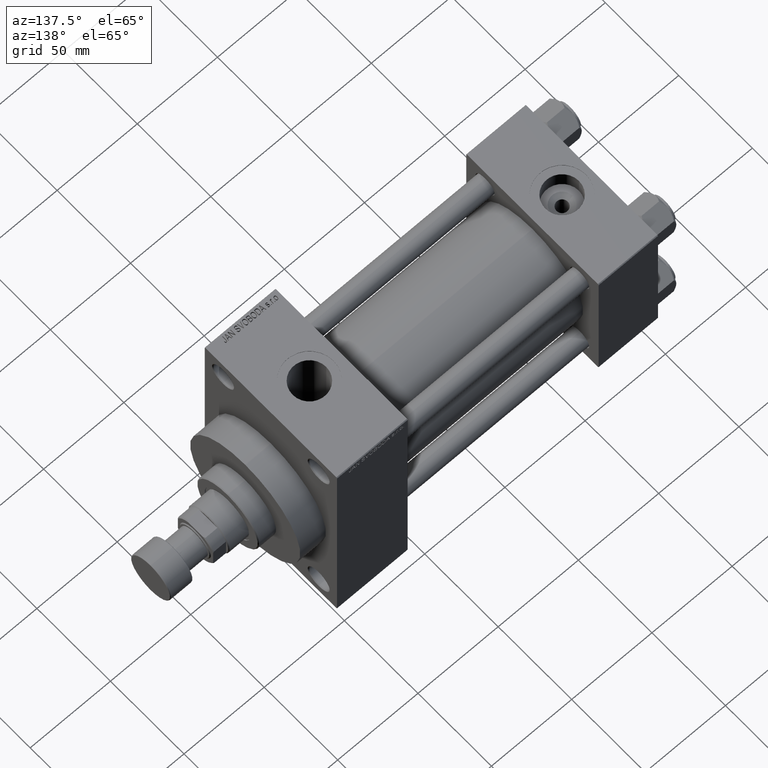
[diagram: clean part render]
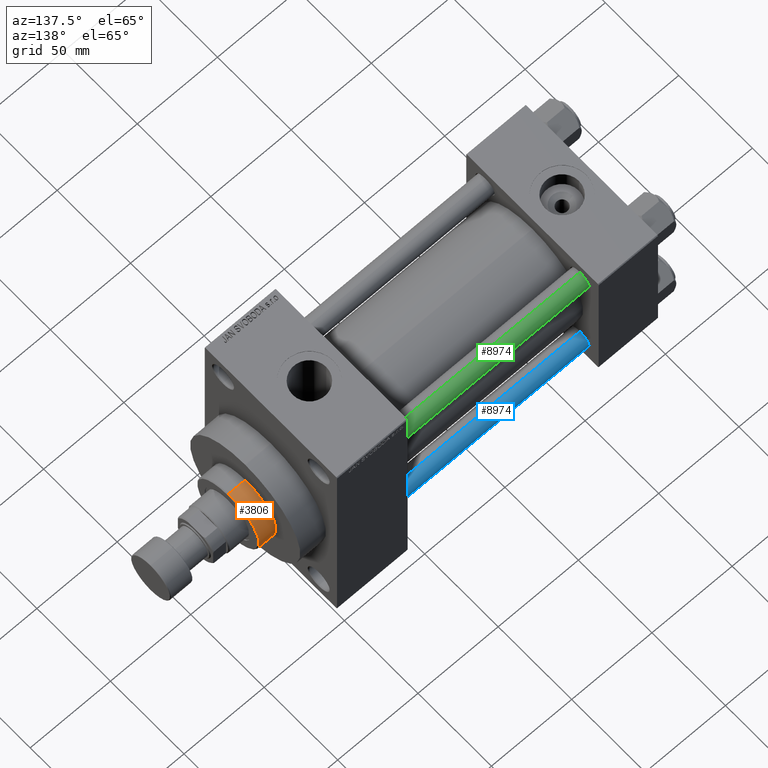
[diagram: same view with three faces highlighted in distinct colors, each labeled with its STEP entity id]
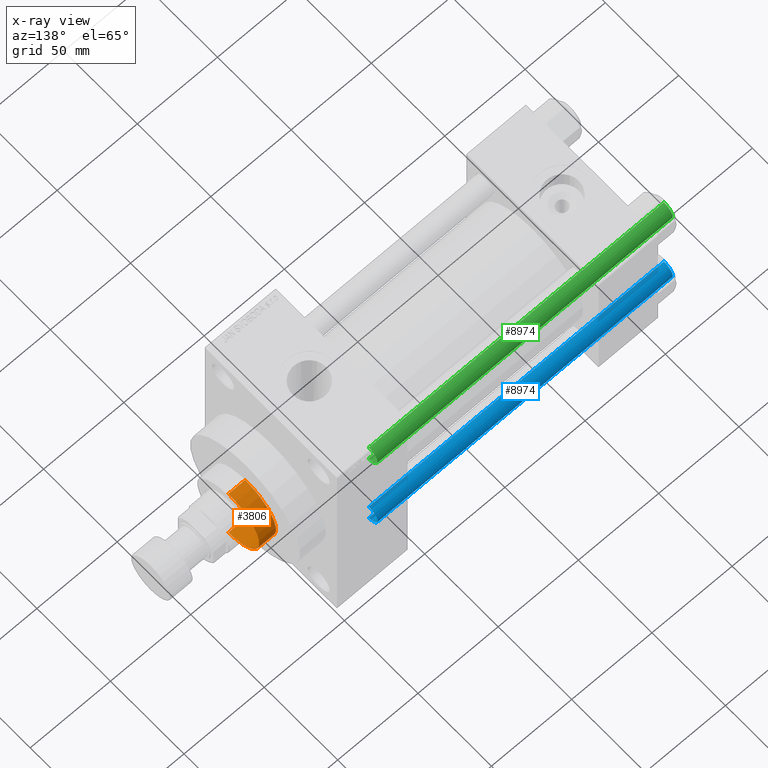
[diagram: x-ray of the same camera — body ghosted, the three highlighted faces saturated]
A machine part, auxiliary view with three faces highlighted in distinct colors.
The next image is the same camera in x-ray (body ghosted, the three faces saturated) — at least one of them is partly hidden behind the body in this view.
Their STEP definitions:

[orange] entity #3806 — the highlighted cylindrical surface (partial cylindrical patch) has radius 21 mm, axis along (-1, -0, 0).
#1161 = CYLINDRICAL_SURFACE ( 'NONE', #34441, 21.00000000000000000 ) ;
#3311 = EDGE_CURVE ( 'NONE', #11696, #38590, #9455, .T. ) ;
#3806 = ADVANCED_FACE ( 'NONE', ( #12236 ), #1161, .T. ) ;
#4528 = DIRECTION ( 'NONE',  ( -1.000000000000000000, 0.000000000000000000, 0.000000000000000000 ) ) ;
#5871 = AXIS2_PLACEMENT_3D ( 'NONE', #18475, #11216, #33907 ) ;
#6769 = VECTOR ( 'NONE', #19030, 1000.000000000000000 ) ;
#7719 = VERTEX_POINT ( 'NONE', #33777 ) ;
#9455 = LINE ( 'NONE', #24179, #42066 ) ;
#9891 = DIRECTION ( 'NONE',  ( 0.000000000000000000, 0.000000000000000000, 1.000000000000000000 ) ) ;
#9899 = CIRCLE ( 'NONE', #25333, 21.00000000000000000 ) ;
#11216 = DIRECTION ( 'NONE',  ( 0.000000000000000000, 0.000000000000000000, -1.000000000000000000 ) ) ;
#11696 = VERTEX_POINT ( 'NONE', #28722 ) ;
#12236 = FACE_OUTER_BOUND ( 'NONE', #17762, .T. ) ;
#13024 = CARTESIAN_POINT ( 'NONE',  ( 0.000000000000000000, 0.000000000000000000, 43.25999999999999801 ) ) ;
#17762 = EDGE_LOOP ( 'NONE', ( #33399, #25304, #35967, #30975 ) ) ;
#18475 = CARTESIAN_POINT ( 'NONE',  ( 0.000000000000000000, 0.000000000000000000, 53.76000000000001933 ) ) ;
#19030 = DIRECTION ( 'NONE',  ( -0.000000000000000000, -0.000000000000000000, -1.000000000000000000 ) ) ;
#23220 = DIRECTION ( 'NONE',  ( -0.000000000000000000, -0.000000000000000000, -1.000000000000000000 ) ) ;
#24179 = CARTESIAN_POINT ( 'NONE',  ( -21.00000000000000000, 0.000000000000000000, 54.26000000000000512 ) ) ;
#24616 = DIRECTION ( 'NONE',  ( 1.000000000000000000, 0.000000000000000000, 0.000000000000000000 ) ) ;
#25304 = ORIENTED_EDGE ( 'NONE', *, *, #34579, .T. ) ;
#25333 = AXIS2_PLACEMENT_3D ( 'NONE', #13024, #9891, #24616 ) ;
#26702 = EDGE_CURVE ( 'NONE', #11696, #7719, #37443, .T. ) ;
#28722 = CARTESIAN_POINT ( 'NONE',  ( -21.00000000000000000, 0.000000000000000000, 53.76000000000001933 ) ) ;
#30975 = ORIENTED_EDGE ( 'NONE', *, *, #3311, .F. ) ;
#33041 = CARTESIAN_POINT ( 'NONE',  ( 21.00000000000000000, 2.571758278209441661E-15, 54.26000000000000512 ) ) ;
#33399 = ORIENTED_EDGE ( 'NONE', *, *, #26702, .T. ) ;
#33777 = CARTESIAN_POINT ( 'NONE',  ( 21.00000000000000000, 2.571758278209441661E-15, 53.76000000000001933 ) ) ;
#33907 = DIRECTION ( 'NONE',  ( 1.000000000000000000, 0.000000000000000000, 0.000000000000000000 ) ) ;
#34038 = CARTESIAN_POINT ( 'NONE',  ( 21.00000000000000000, 2.571758278209441661E-15, 43.25999999999999801 ) ) ;
#34441 = AXIS2_PLACEMENT_3D ( 'NONE', #34450, #45749, #4528 ) ;
#34450 = CARTESIAN_POINT ( 'NONE',  ( 0.000000000000000000, 0.000000000000000000, 54.26000000000000512 ) ) ;
#34579 = EDGE_CURVE ( 'NONE', #7719, #38348, #43889, .T. ) ;
#35967 = ORIENTED_EDGE ( 'NONE', *, *, #36155, .T. ) ;
#36155 = EDGE_CURVE ( 'NONE', #38348, #38590, #9899, .T. ) ;
#37443 = CIRCLE ( 'NONE', #5871, 21.00000000000000000 ) ;
#38348 = VERTEX_POINT ( 'NONE', #34038 ) ;
#38590 = VERTEX_POINT ( 'NONE', #45291 ) ;
#42066 = VECTOR ( 'NONE', #23220, 1000.000000000000000 ) ;
#43889 = LINE ( 'NONE', #33041, #6769 ) ;
#45291 = CARTESIAN_POINT ( 'NONE',  ( -21.00000000000000000, 0.000000000000000000, 43.25999999999999801 ) ) ;
#45749 = DIRECTION ( 'NONE',  ( -0.000000000000000000, -0.000000000000000000, -1.000000000000000000 ) ) ;

[blue] entity #8974 — the highlighted cylindrical surface (edge-blend (fillet) strip) has radius 6 mm, axis along (-1, -0, 0).
#311 = LINE ( 'NONE', #14996, #3968 ) ;
#2363 = AXIS2_PLACEMENT_3D ( 'NONE', #7781, #36285, #22502 ) ;
#3968 = VECTOR ( 'NONE', #44420, 1000.000000000000000 ) ;
#4687 = CYLINDRICAL_SURFACE ( 'NONE', #11472, 6.000000000000000888 ) ;
#5241 = VERTEX_POINT ( 'NONE', #37984 ) ;
#5512 = ORIENTED_EDGE ( 'NONE', *, *, #47337, .F. ) ;
#6467 = CARTESIAN_POINT ( 'NONE',  ( 6.000000000000000888, 7.347880794884120722E-16, 0.5000000000000281997 ) ) ;
#7659 = ORIENTED_EDGE ( 'NONE', *, *, #16695, .T. ) ;
#7781 = CARTESIAN_POINT ( 'NONE',  ( 0.000000000000000000, 0.000000000000000000, 0.5000000000000281997 ) ) ;
#8429 = EDGE_CURVE ( 'NONE', #10275, #16174, #12203, .T. ) ;
#8974 = ADVANCED_FACE ( 'NONE', ( #23493 ), #4687, .T. ) ;
#10154 = ORIENTED_EDGE ( 'NONE', *, *, #41130, .T. ) ;
#10275 = VERTEX_POINT ( 'NONE', #13890 ) ;
#10643 = LINE ( 'NONE', #29219, #46274 ) ;
#11472 = AXIS2_PLACEMENT_3D ( 'NONE', #34127, #44705, #19635 ) ;
#12203 = CIRCLE ( 'NONE', #40714, 6.000000000000000888 ) ;
#13890 = CARTESIAN_POINT ( 'NONE',  ( -6.000000000000000888, 0.000000000000000000, 184.5000000000000000 ) ) ;
#14996 = CARTESIAN_POINT ( 'NONE',  ( -6.000000000000000888, 0.000000000000000000, 185.0000000000000000 ) ) ;
#15318 = CARTESIAN_POINT ( 'NONE',  ( 6.000000000000000888, 7.347880794884120722E-16, 184.5000000000000000 ) ) ;
#16174 = VERTEX_POINT ( 'NONE', #15318 ) ;
#16695 = EDGE_CURVE ( 'NONE', #21299, #5241, #43944, .T. ) ;
#19635 = DIRECTION ( 'NONE',  ( -1.000000000000000000, 0.000000000000000000, 0.000000000000000000 ) ) ;
#21299 = VERTEX_POINT ( 'NONE', #6467 ) ;
#21612 = ORIENTED_EDGE ( 'NONE', *, *, #8429, .T. ) ;
#22502 = DIRECTION ( 'NONE',  ( 1.000000000000000000, 0.000000000000000000, 0.000000000000000000 ) ) ;
#23493 = FACE_OUTER_BOUND ( 'NONE', #37868, .T. ) ;
#29219 = CARTESIAN_POINT ( 'NONE',  ( 6.000000000000000888, 7.347880794884120722E-16, 185.0000000000000000 ) ) ;
#29948 = DIRECTION ( 'NONE',  ( 0.000000000000000000, 0.000000000000000000, -1.000000000000000000 ) ) ;
#34127 = CARTESIAN_POINT ( 'NONE',  ( 0.000000000000000000, 0.000000000000000000, 185.0000000000000000 ) ) ;
#36285 = DIRECTION ( 'NONE',  ( -0.000000000000000000, -0.000000000000000000, 1.000000000000000000 ) ) ;
#37868 = EDGE_LOOP ( 'NONE', ( #21612, #10154, #7659, #5512 ) ) ;
#37984 = CARTESIAN_POINT ( 'NONE',  ( -6.000000000000000888, 0.000000000000000000, 0.5000000000000281997 ) ) ;
#40714 = AXIS2_PLACEMENT_3D ( 'NONE', #40797, #29948, #44635 ) ;
#40797 = CARTESIAN_POINT ( 'NONE',  ( 0.000000000000000000, 0.000000000000000000, 184.5000000000000000 ) ) ;
#41130 = EDGE_CURVE ( 'NONE', #16174, #21299, #10643, .T. ) ;
#43944 = CIRCLE ( 'NONE', #2363, 6.000000000000000888 ) ;
#44420 = DIRECTION ( 'NONE',  ( -0.000000000000000000, -0.000000000000000000, -1.000000000000000000 ) ) ;
#44635 = DIRECTION ( 'NONE',  ( 1.000000000000000000, 0.000000000000000000, 0.000000000000000000 ) ) ;
#44705 = DIRECTION ( 'NONE',  ( -0.000000000000000000, -0.000000000000000000, -1.000000000000000000 ) ) ;
#46274 = VECTOR ( 'NONE', #47077, 1000.000000000000000 ) ;
#47077 = DIRECTION ( 'NONE',  ( -0.000000000000000000, -0.000000000000000000, -1.000000000000000000 ) ) ;
#47337 = EDGE_CURVE ( 'NONE', #10275, #5241, #311, .T. ) ;

[green] entity #8974 — the highlighted cylindrical surface (edge-blend (fillet) strip) has radius 6 mm, axis along (1, -0, -0).
#311 = LINE ( 'NONE', #14996, #3968 ) ;
#2363 = AXIS2_PLACEMENT_3D ( 'NONE', #7781, #36285, #22502 ) ;
#3968 = VECTOR ( 'NONE', #44420, 1000.000000000000000 ) ;
#4687 = CYLINDRICAL_SURFACE ( 'NONE', #11472, 6.000000000000000888 ) ;
#5241 = VERTEX_POINT ( 'NONE', #37984 ) ;
#5512 = ORIENTED_EDGE ( 'NONE', *, *, #47337, .F. ) ;
#6467 = CARTESIAN_POINT ( 'NONE',  ( 6.000000000000000888, 7.347880794884120722E-16, 0.5000000000000281997 ) ) ;
#7659 = ORIENTED_EDGE ( 'NONE', *, *, #16695, .T. ) ;
#7781 = CARTESIAN_POINT ( 'NONE',  ( 0.000000000000000000, 0.000000000000000000, 0.5000000000000281997 ) ) ;
#8429 = EDGE_CURVE ( 'NONE', #10275, #16174, #12203, .T. ) ;
#8974 = ADVANCED_FACE ( 'NONE', ( #23493 ), #4687, .T. ) ;
#10154 = ORIENTED_EDGE ( 'NONE', *, *, #41130, .T. ) ;
#10275 = VERTEX_POINT ( 'NONE', #13890 ) ;
#10643 = LINE ( 'NONE', #29219, #46274 ) ;
#11472 = AXIS2_PLACEMENT_3D ( 'NONE', #34127, #44705, #19635 ) ;
#12203 = CIRCLE ( 'NONE', #40714, 6.000000000000000888 ) ;
#13890 = CARTESIAN_POINT ( 'NONE',  ( -6.000000000000000888, 0.000000000000000000, 184.5000000000000000 ) ) ;
#14996 = CARTESIAN_POINT ( 'NONE',  ( -6.000000000000000888, 0.000000000000000000, 185.0000000000000000 ) ) ;
#15318 = CARTESIAN_POINT ( 'NONE',  ( 6.000000000000000888, 7.347880794884120722E-16, 184.5000000000000000 ) ) ;
#16174 = VERTEX_POINT ( 'NONE', #15318 ) ;
#16695 = EDGE_CURVE ( 'NONE', #21299, #5241, #43944, .T. ) ;
#19635 = DIRECTION ( 'NONE',  ( -1.000000000000000000, 0.000000000000000000, 0.000000000000000000 ) ) ;
#21299 = VERTEX_POINT ( 'NONE', #6467 ) ;
#21612 = ORIENTED_EDGE ( 'NONE', *, *, #8429, .T. ) ;
#22502 = DIRECTION ( 'NONE',  ( 1.000000000000000000, 0.000000000000000000, 0.000000000000000000 ) ) ;
#23493 = FACE_OUTER_BOUND ( 'NONE', #37868, .T. ) ;
#29219 = CARTESIAN_POINT ( 'NONE',  ( 6.000000000000000888, 7.347880794884120722E-16, 185.0000000000000000 ) ) ;
#29948 = DIRECTION ( 'NONE',  ( 0.000000000000000000, 0.000000000000000000, -1.000000000000000000 ) ) ;
#34127 = CARTESIAN_POINT ( 'NONE',  ( 0.000000000000000000, 0.000000000000000000, 185.0000000000000000 ) ) ;
#36285 = DIRECTION ( 'NONE',  ( -0.000000000000000000, -0.000000000000000000, 1.000000000000000000 ) ) ;
#37868 = EDGE_LOOP ( 'NONE', ( #21612, #10154, #7659, #5512 ) ) ;
#37984 = CARTESIAN_POINT ( 'NONE',  ( -6.000000000000000888, 0.000000000000000000, 0.5000000000000281997 ) ) ;
#40714 = AXIS2_PLACEMENT_3D ( 'NONE', #40797, #29948, #44635 ) ;
#40797 = CARTESIAN_POINT ( 'NONE',  ( 0.000000000000000000, 0.000000000000000000, 184.5000000000000000 ) ) ;
#41130 = EDGE_CURVE ( 'NONE', #16174, #21299, #10643, .T. ) ;
#43944 = CIRCLE ( 'NONE', #2363, 6.000000000000000888 ) ;
#44420 = DIRECTION ( 'NONE',  ( -0.000000000000000000, -0.000000000000000000, -1.000000000000000000 ) ) ;
#44635 = DIRECTION ( 'NONE',  ( 1.000000000000000000, 0.000000000000000000, 0.000000000000000000 ) ) ;
#44705 = DIRECTION ( 'NONE',  ( -0.000000000000000000, -0.000000000000000000, -1.000000000000000000 ) ) ;
#46274 = VECTOR ( 'NONE', #47077, 1000.000000000000000 ) ;
#47077 = DIRECTION ( 'NONE',  ( -0.000000000000000000, -0.000000000000000000, -1.000000000000000000 ) ) ;
#47337 = EDGE_CURVE ( 'NONE', #10275, #5241, #311, .T. ) ;